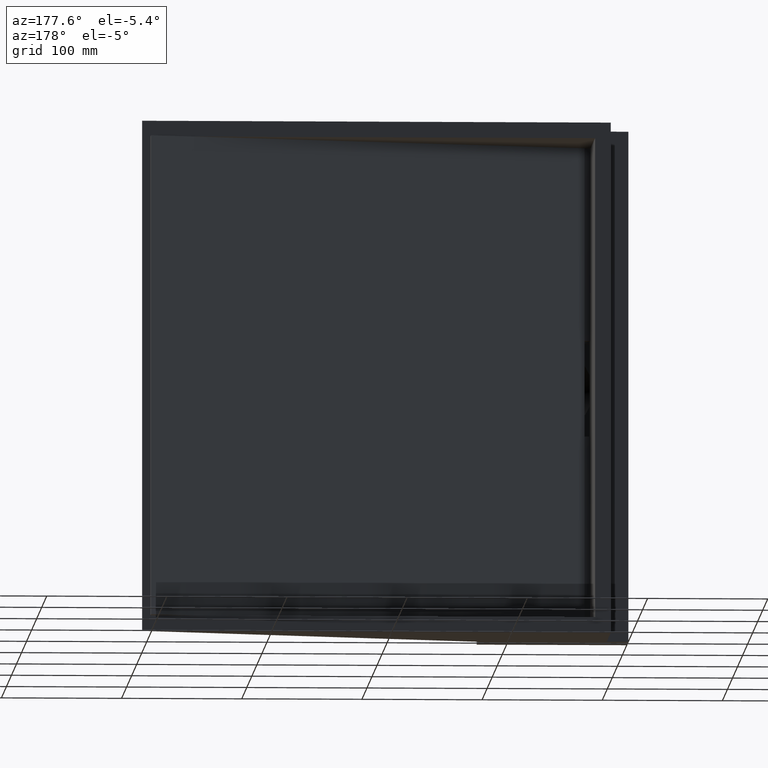
[diagram: clean part render]
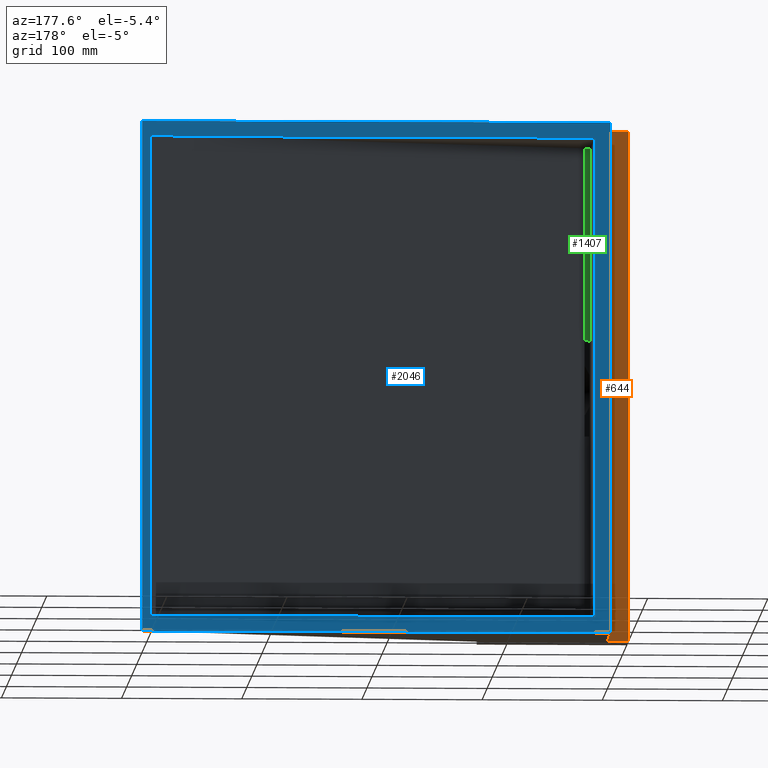
[diagram: same view with three faces highlighted in distinct colors, each labeled with its STEP entity id]
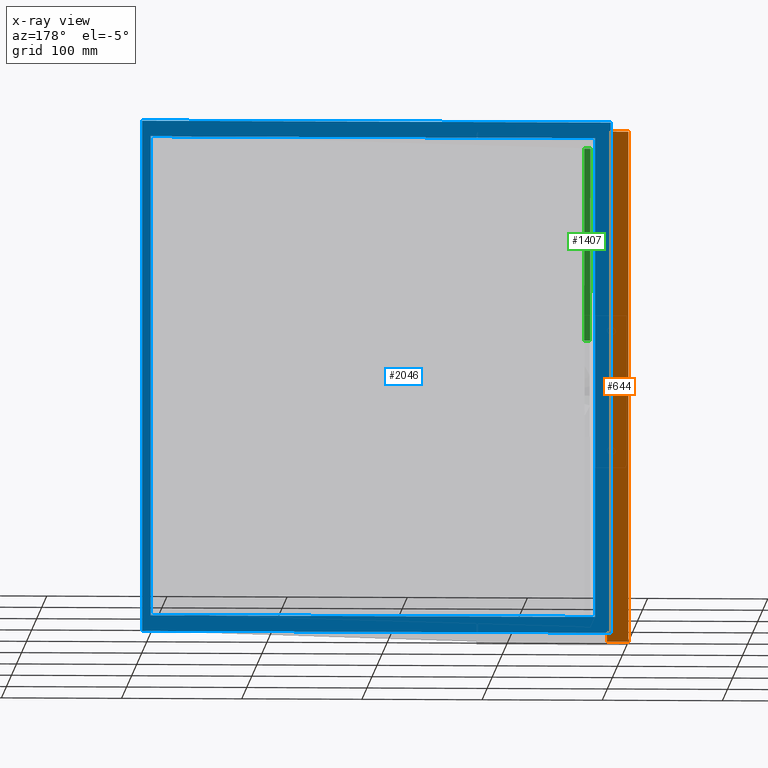
[diagram: x-ray of the same camera — body ghosted, the three highlighted faces saturated]
A machine part, auxiliary view with three faces highlighted in distinct colors.
The next image is the same camera in x-ray (body ghosted, the three faces saturated) — at least one of them is partly hidden behind the body in this view.
Their STEP definitions:

[orange] entity #644 — the highlighted planar face has unit normal (0, -1, 0).
#61 = AXIS2_PLACEMENT_3D ( 'NONE', #2494, #567, #1698 ) ;
#96 = DIRECTION ( 'NONE',  ( -1.000000000000000000, -0.0000000000000000000, -0.0000000000000000000 ) ) ;
#160 = EDGE_CURVE ( 'NONE', #252, #2270, #2495, .T. ) ;
#164 = ORIENTED_EDGE ( 'NONE', *, *, #2923, .T. ) ;
#200 = DIRECTION ( 'NONE',  ( -0.0000000000000000000, -0.0000000000000000000, -1.000000000000000000 ) ) ;
#210 = CARTESIAN_POINT ( 'NONE',  ( -86.11638246079655800, -80.00000000000000000, -213.0000000000000000 ) ) ;
#252 = VERTEX_POINT ( 'NONE', #2190 ) ;
#347 = VERTEX_POINT ( 'NONE', #1317 ) ;
#540 = CARTESIAN_POINT ( 'NONE',  ( -104.1163824607965600, -80.00000000000000000, 213.0000000000000000 ) ) ;
#567 = DIRECTION ( 'NONE',  ( 0.0000000000000000000, -1.000000000000000000, 0.0000000000000000000 ) ) ;
#644 = ADVANCED_FACE ( 'NONE', ( #2157 ), #1003, .F. ) ;
#1003 = PLANE ( 'NONE',  #61 ) ;
#1062 = CARTESIAN_POINT ( 'NONE',  ( -86.11638246079655800, -80.00000000000000000, 213.0000000000000000 ) ) ;
#1085 = EDGE_CURVE ( 'NONE', #2099, #347, #1763, .T. ) ;
#1152 = LINE ( 'NONE', #2383, #2553 ) ;
#1234 = CARTESIAN_POINT ( 'NONE',  ( -104.1163824607965600, -80.00000000000000000, -213.0000000000000000 ) ) ;
#1317 = CARTESIAN_POINT ( 'NONE',  ( -104.1163824607965600, -80.00000000000000000, -213.0000000000000000 ) ) ;
#1698 = DIRECTION ( 'NONE',  ( 0.0000000000000000000, -0.0000000000000000000, -1.000000000000000000 ) ) ;
#1763 = LINE ( 'NONE', #1234, #2887 ) ;
#1942 = CARTESIAN_POINT ( 'NONE',  ( -104.1163824607965600, -80.00000000000000000, 213.0000000000000000 ) ) ;
#1965 = DIRECTION ( 'NONE',  ( -1.000000000000000000, -0.0000000000000000000, -0.0000000000000000000 ) ) ;
#2099 = VERTEX_POINT ( 'NONE', #210 ) ;
#2157 = FACE_OUTER_BOUND ( 'NONE', #2789, .T. ) ;
#2190 = CARTESIAN_POINT ( 'NONE',  ( -86.11638246079655800, -80.00000000000000000, 213.0000000000000000 ) ) ;
#2270 = VERTEX_POINT ( 'NONE', #540 ) ;
#2319 = LINE ( 'NONE', #1062, #2912 ) ;
#2383 = CARTESIAN_POINT ( 'NONE',  ( -104.1163824607965600, -80.00000000000000000, 213.0000000000000000 ) ) ;
#2481 = EDGE_CURVE ( 'NONE', #2270, #347, #1152, .T. ) ;
#2492 = ORIENTED_EDGE ( 'NONE', *, *, #160, .F. ) ;
#2494 = CARTESIAN_POINT ( 'NONE',  ( -104.1163824607965600, -80.00000000000000000, 213.0000000000000000 ) ) ;
#2495 = LINE ( 'NONE', #1942, #2825 ) ;
#2505 = ORIENTED_EDGE ( 'NONE', *, *, #1085, .T. ) ;
#2553 = VECTOR ( 'NONE', #200, 1000.000000000000000 ) ;
#2635 = DIRECTION ( 'NONE',  ( -0.0000000000000000000, -0.0000000000000000000, -1.000000000000000000 ) ) ;
#2758 = ORIENTED_EDGE ( 'NONE', *, *, #2481, .F. ) ;
#2789 = EDGE_LOOP ( 'NONE', ( #2505, #2758, #2492, #164 ) ) ;
#2825 = VECTOR ( 'NONE', #1965, 1000.000000000000000 ) ;
#2887 = VECTOR ( 'NONE', #96, 1000.000000000000000 ) ;
#2912 = VECTOR ( 'NONE', #2635, 1000.000000000000000 ) ;
#2923 = EDGE_CURVE ( 'NONE', #252, #2099, #2319, .T. ) ;

[blue] entity #2046 — the highlighted planar face has unit normal (0, -1, 0).
#1 = CARTESIAN_POINT ( 'NONE',  ( 260.3836175392034400, 0.0000000000000000000, 199.9999999999999700 ) ) ;
#34 = EDGE_CURVE ( 'NONE', #457, #2413, #2053, .T. ) ;
#50 = VERTEX_POINT ( 'NONE', #1 ) ;
#85 = CARTESIAN_POINT ( 'NONE',  ( 296.8836175392034400, 0.0000000000000000000, 199.9999999999999700 ) ) ;
#97 = LINE ( 'NONE', #1702, #2485 ) ;
#115 = ORIENTED_EDGE ( 'NONE', *, *, #1993, .T. ) ;
#168 = DIRECTION ( 'NONE',  ( 0.0000000000000000000, 0.0000000000000000000, -1.000000000000000000 ) ) ;
#217 = CARTESIAN_POINT ( 'NONE',  ( -86.11638246079655800, 0.0000000000000000000, 199.9999999999999700 ) ) ;
#248 = EDGE_LOOP ( 'NONE', ( #480, #2901, #2241, #1472 ) ) ;
#288 = LINE ( 'NONE', #1005, #611 ) ;
#310 = VECTOR ( 'NONE', #970, 1000.000000000000000 ) ;
#358 = FACE_OUTER_BOUND ( 'NONE', #248, .T. ) ;
#385 = LINE ( 'NONE', #1603, #1036 ) ;
#394 = ORIENTED_EDGE ( 'NONE', *, *, #455, .F. ) ;
#455 = EDGE_CURVE ( 'NONE', #2272, #2902, #1901, .T. ) ;
#457 = VERTEX_POINT ( 'NONE', #677 ) ;
#480 = ORIENTED_EDGE ( 'NONE', *, *, #1651, .T. ) ;
#498 = VERTEX_POINT ( 'NONE', #747 ) ;
#511 = DIRECTION ( 'NONE',  ( 1.000000000000000000, -0.0000000000000000000, -0.0000000000000000000 ) ) ;
#516 = EDGE_CURVE ( 'NONE', #2272, #50, #385, .T. ) ;
#611 = VECTOR ( 'NONE', #1478, 1000.000000000000000 ) ;
#629 = EDGE_CURVE ( 'NONE', #896, #2902, #2816, .T. ) ;
#669 = ORIENTED_EDGE ( 'NONE', *, *, #629, .T. ) ;
#677 = CARTESIAN_POINT ( 'NONE',  ( 303.8836175392034400, 0.0000000000000000000, 213.0000000000000000 ) ) ;
#689 = VERTEX_POINT ( 'NONE', #769 ) ;
#735 = CARTESIAN_POINT ( 'NONE',  ( -86.11638246079655800, 0.0000000000000000000, -213.0000000000000000 ) ) ;
#738 = DIRECTION ( 'NONE',  ( -1.000000000000000000, 0.0000000000000000000, 0.0000000000000000000 ) ) ;
#747 = CARTESIAN_POINT ( 'NONE',  ( -73.11638246079660100, 3.469446951953614200E-015, 199.9999999999999700 ) ) ;
#769 = CARTESIAN_POINT ( 'NONE',  ( 303.8836175392034400, 0.0000000000000000000, -213.0000000000000000 ) ) ;
#787 = DIRECTION ( 'NONE',  ( -1.000000000000000000, -0.0000000000000000000, -0.0000000000000000000 ) ) ;
#851 = VECTOR ( 'NONE', #1136, 1000.000000000000000 ) ;
#896 = VERTEX_POINT ( 'NONE', #2089 ) ;
#902 = DIRECTION ( 'NONE',  ( 0.0000000000000000000, -0.0000000000000000000, -1.000000000000000000 ) ) ;
#917 = DIRECTION ( 'NONE',  ( -0.0000000000000000000, -0.0000000000000000000, -1.000000000000000000 ) ) ;
#970 = DIRECTION ( 'NONE',  ( -1.000000000000000000, -0.0000000000000000000, -0.0000000000000000000 ) ) ;
#1005 = CARTESIAN_POINT ( 'NONE',  ( 303.8836175392034400, 0.0000000000000000000, 213.0000000000000000 ) ) ;
#1028 = EDGE_CURVE ( 'NONE', #689, #2578, #2107, .T. ) ;
#1036 = VECTOR ( 'NONE', #787, 1000.000000000000000 ) ;
#1055 = ORIENTED_EDGE ( 'NONE', *, *, #516, .T. ) ;
#1099 = VECTOR ( 'NONE', #511, 1000.000000000000000 ) ;
#1136 = DIRECTION ( 'NONE',  ( -1.000000000000000000, -0.0000000000000000000, -0.0000000000000000000 ) ) ;
#1138 = CARTESIAN_POINT ( 'NONE',  ( 303.8836175392034400, 0.0000000000000000000, -199.9999999999999400 ) ) ;
#1193 = EDGE_CURVE ( 'NONE', #50, #498, #2849, .T. ) ;
#1316 = LINE ( 'NONE', #2215, #1981 ) ;
#1321 = CARTESIAN_POINT ( 'NONE',  ( -86.11638246079655800, 0.0000000000000000000, 213.0000000000000000 ) ) ;
#1391 = VECTOR ( 'NONE', #2368, 1000.000000000000000 ) ;
#1400 = CARTESIAN_POINT ( 'NONE',  ( -86.11638246079655800, 0.0000000000000000000, 213.0000000000000000 ) ) ;
#1420 = CARTESIAN_POINT ( 'NONE',  ( 296.8836175392034400, 0.0000000000000000000, 213.0000000000000000 ) ) ;
#1472 = ORIENTED_EDGE ( 'NONE', *, *, #34, .F. ) ;
#1478 = DIRECTION ( 'NONE',  ( -0.0000000000000000000, -0.0000000000000000000, -1.000000000000000000 ) ) ;
#1603 = CARTESIAN_POINT ( 'NONE',  ( 260.3836175392034400, 0.0000000000000000000, 199.9999999999999700 ) ) ;
#1642 = DIRECTION ( 'NONE',  ( 1.000000000000000000, 0.0000000000000000000, 0.0000000000000000000 ) ) ;
#1651 = EDGE_CURVE ( 'NONE', #457, #689, #288, .T. ) ;
#1668 = DIRECTION ( 'NONE',  ( 0.0000000000000000000, -1.000000000000000000, 0.0000000000000000000 ) ) ;
#1702 = CARTESIAN_POINT ( 'NONE',  ( -86.11638246079655800, 0.0000000000000000000, -199.9999999999999700 ) ) ;
#1802 = EDGE_LOOP ( 'NONE', ( #669, #394, #1055, #2754, #115, #2776 ) ) ;
#1866 = CARTESIAN_POINT ( 'NONE',  ( -86.11638246079655800, 0.0000000000000000000, 213.0000000000000000 ) ) ;
#1874 = PLANE ( 'NONE',  #2388 ) ;
#1901 = LINE ( 'NONE', #2303, #2072 ) ;
#1952 = EDGE_CURVE ( 'NONE', #2413, #2578, #2051, .T. ) ;
#1977 = VERTEX_POINT ( 'NONE', #2302 ) ;
#1979 = EDGE_CURVE ( 'NONE', #1977, #896, #97, .T. ) ;
#1981 = VECTOR ( 'NONE', #168, 1000.000000000000000 ) ;
#1993 = EDGE_CURVE ( 'NONE', #498, #1977, #1316, .T. ) ;
#2046 = ADVANCED_FACE ( 'NONE', ( #2693, #358 ), #1874, .F. ) ;
#2051 = LINE ( 'NONE', #1400, #1391 ) ;
#2053 = LINE ( 'NONE', #1420, #851 ) ;
#2072 = VECTOR ( 'NONE', #917, 1000.000000000000000 ) ;
#2089 = CARTESIAN_POINT ( 'NONE',  ( 260.3836175392035000, 0.0000000000000000000, -199.9999999999999400 ) ) ;
#2107 = LINE ( 'NONE', #735, #310 ) ;
#2191 = CARTESIAN_POINT ( 'NONE',  ( 296.8836175392034400, 0.0000000000000000000, -199.9999999999999400 ) ) ;
#2215 = CARTESIAN_POINT ( 'NONE',  ( -73.11638246079660100, 0.0000000000000000000, 213.0000000000000000 ) ) ;
#2241 = ORIENTED_EDGE ( 'NONE', *, *, #1952, .F. ) ;
#2272 = VERTEX_POINT ( 'NONE', #85 ) ;
#2302 = CARTESIAN_POINT ( 'NONE',  ( -73.11638246079660100, 0.0000000000000000000, -199.9999999999999400 ) ) ;
#2303 = CARTESIAN_POINT ( 'NONE',  ( 296.8836175392034400, 0.0000000000000000000, 213.0000000000000000 ) ) ;
#2366 = VECTOR ( 'NONE', #738, 1000.000000000000000 ) ;
#2368 = DIRECTION ( 'NONE',  ( -0.0000000000000000000, -0.0000000000000000000, -1.000000000000000000 ) ) ;
#2388 = AXIS2_PLACEMENT_3D ( 'NONE', #1321, #1668, #902 ) ;
#2413 = VERTEX_POINT ( 'NONE', #1866 ) ;
#2485 = VECTOR ( 'NONE', #1642, 1000.000000000000000 ) ;
#2513 = CARTESIAN_POINT ( 'NONE',  ( -86.11638246079655800, 0.0000000000000000000, -213.0000000000000000 ) ) ;
#2578 = VERTEX_POINT ( 'NONE', #2513 ) ;
#2693 = FACE_BOUND ( 'NONE', #1802, .T. ) ;
#2754 = ORIENTED_EDGE ( 'NONE', *, *, #1193, .T. ) ;
#2776 = ORIENTED_EDGE ( 'NONE', *, *, #1979, .T. ) ;
#2816 = LINE ( 'NONE', #1138, #1099 ) ;
#2849 = LINE ( 'NONE', #217, #2366 ) ;
#2901 = ORIENTED_EDGE ( 'NONE', *, *, #1028, .T. ) ;
#2902 = VERTEX_POINT ( 'NONE', #2191 ) ;

[green] entity #1407 — the highlighted planar face has unit normal (0, -0.9995, 0.0312).
#162 = DIRECTION ( 'NONE',  ( 0.0000000000000000000, -0.03123475237772098400, -0.9995120760870787000 ) ) ;
#232 = ORIENTED_EDGE ( 'NONE', *, *, #439, .F. ) ;
#261 = VECTOR ( 'NONE', #2755, 1000.000000000000100 ) ;
#295 = EDGE_CURVE ( 'NONE', #1337, #503, #447, .T. ) ;
#333 = CARTESIAN_POINT ( 'NONE',  ( -73.11638246079655800, -98.99999999999995700, 40.00000000000000700 ) ) ;
#359 = CARTESIAN_POINT ( 'NONE',  ( 106.0358497959276000, -94.00000000000000000, 199.9999999999999700 ) ) ;
#439 = EDGE_CURVE ( 'NONE', #1337, #2566, #2443, .T. ) ;
#447 = LINE ( 'NONE', #710, #2306 ) ;
#473 = EDGE_CURVE ( 'NONE', #503, #504, #1154, .T. ) ;
#503 = VERTEX_POINT ( 'NONE', #333 ) ;
#504 = VERTEX_POINT ( 'NONE', #2704 ) ;
#513 = FACE_OUTER_BOUND ( 'NONE', #952, .T. ) ;
#710 = CARTESIAN_POINT ( 'NONE',  ( 106.0358497959276000, -98.99999999999995700, 40.00000000000000700 ) ) ;
#714 = ORIENTED_EDGE ( 'NONE', *, *, #473, .T. ) ;
#798 = CARTESIAN_POINT ( 'NONE',  ( -73.11638246079655800, -94.00000000000000000, 199.9999999999999700 ) ) ;
#853 = AXIS2_PLACEMENT_3D ( 'NONE', #2433, #1761, #162 ) ;
#952 = EDGE_LOOP ( 'NONE', ( #232, #1517, #714, #2540 ) ) ;
#1002 = CARTESIAN_POINT ( 'NONE',  ( -68.11638246079655800, -94.00000000000000000, 199.9999999999999700 ) ) ;
#1154 = LINE ( 'NONE', #798, #2796 ) ;
#1323 = EDGE_CURVE ( 'NONE', #2566, #504, #2029, .T. ) ;
#1337 = VERTEX_POINT ( 'NONE', #2318 ) ;
#1407 = ADVANCED_FACE ( 'NONE', ( #513 ), #1989, .F. ) ;
#1517 = ORIENTED_EDGE ( 'NONE', *, *, #295, .T. ) ;
#1761 = DIRECTION ( 'NONE',  ( 0.0000000000000000000, -0.9995120760870788200, 0.03123475237772098700 ) ) ;
#1989 = PLANE ( 'NONE',  #853 ) ;
#2029 = LINE ( 'NONE', #359, #2941 ) ;
#2127 = DIRECTION ( 'NONE',  ( -0.0000000000000000000, 0.03123475237772098400, 0.9995120760870787000 ) ) ;
#2306 = VECTOR ( 'NONE', #2785, 1000.000000000000000 ) ;
#2318 = CARTESIAN_POINT ( 'NONE',  ( -68.11638246079655800, -98.99999999999995700, 40.00000000000000700 ) ) ;
#2433 = CARTESIAN_POINT ( 'NONE',  ( 106.0358497959276000, -94.00000000000000000, 199.9999999999999700 ) ) ;
#2443 = LINE ( 'NONE', #1002, #261 ) ;
#2540 = ORIENTED_EDGE ( 'NONE', *, *, #1323, .F. ) ;
#2566 = VERTEX_POINT ( 'NONE', #2864 ) ;
#2704 = CARTESIAN_POINT ( 'NONE',  ( -73.11638246079655800, -94.00000000000000000, 199.9999999999999700 ) ) ;
#2755 = DIRECTION ( 'NONE',  ( 0.0000000000000000000, 0.03123475237772098400, 0.9995120760870787000 ) ) ;
#2785 = DIRECTION ( 'NONE',  ( -1.000000000000000000, -0.0000000000000000000, -0.0000000000000000000 ) ) ;
#2796 = VECTOR ( 'NONE', #2127, 1000.000000000000200 ) ;
#2807 = DIRECTION ( 'NONE',  ( -1.000000000000000000, -0.0000000000000000000, -0.0000000000000000000 ) ) ;
#2864 = CARTESIAN_POINT ( 'NONE',  ( -68.11638246079655800, -94.00000000000000000, 199.9999999999999700 ) ) ;
#2941 = VECTOR ( 'NONE', #2807, 1000.000000000000000 ) ;